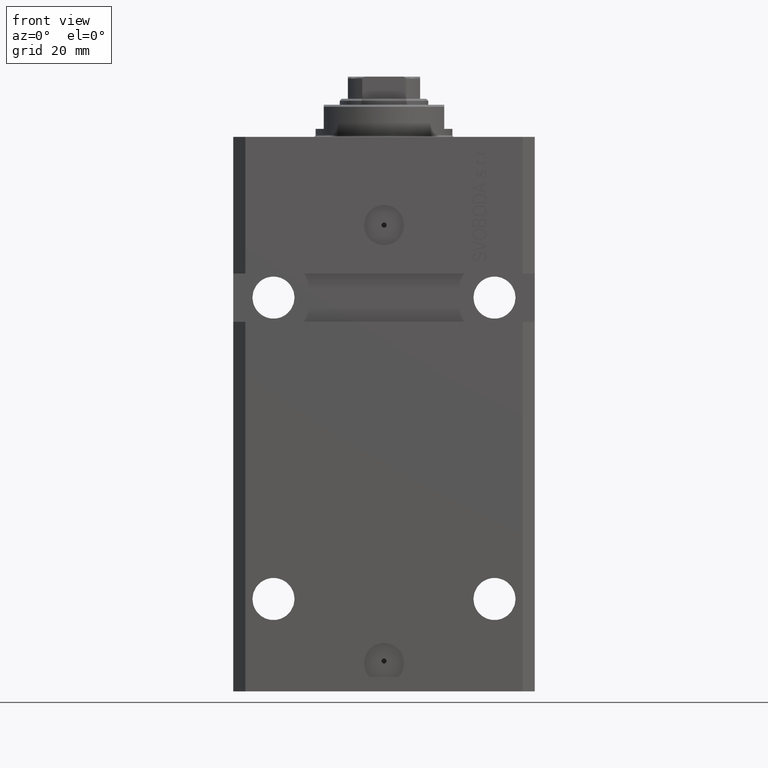
[diagram: clean part render]
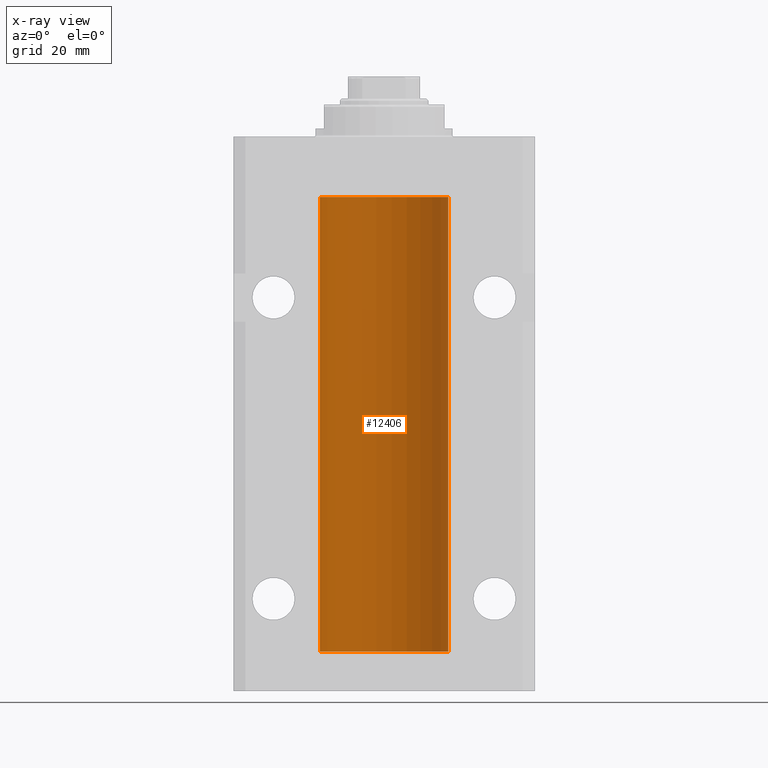
[diagram: x-ray — body ghosted, one internal face saturated and labeled with its STEP entity id]
A machine part, front view, then the same camera in x-ray: the body is ghosted and one INTERNAL B-rep face — a face not visible from any outside direction — is saturated and labeled: STEP entity #12406.
In plain terms, the highlighted cylindrical surface (partial cylindrical patch) has radius 16 mm, axis along (0, 0, 1).
Its self-contained STEP definition (entity closure, byte-faithful):
#627 = CARTESIAN_POINT ( 'NONE',  ( -15.98778717651346426, 0.6250289588122056594, -126.0813158568705461 ) ) ;
#890 = CYLINDRICAL_SURFACE ( 'NONE', #15575, 16.00000000000000000 ) ;
#1077 = CARTESIAN_POINT ( 'NONE',  ( -16.00000000000000000, 0.1631714642025800244, -22.62499999999985789 ) ) ;
#1326 = CARTESIAN_POINT ( 'NONE',  ( -15.99228023727724057, 0.5003781296993449201, -126.3834782955424174 ) ) ;
#2049 = LINE ( 'NONE', #9488, #2642 ) ;
#2642 = VECTOR ( 'NONE', #5414, 1000.000000000000000 ) ;
#2920 = VERTEX_POINT ( 'NONE', #22486 ) ;
#3765 = CARTESIAN_POINT ( 'NONE',  ( 16.00000000000000000, 0.000000000000000000, -128.0999999999999943 ) ) ;
#4459 = CARTESIAN_POINT ( 'NONE',  ( -15.99707730059171240, 0.3150375992092407373, -21.45402333202571654 ) ) ;
#5414 = DIRECTION ( 'NONE',  ( -0.000000000000000000, -0.000000000000000000, 1.000000000000000000 ) ) ;
#6822 = CARTESIAN_POINT ( 'NONE',  ( -16.00000000000000000, 1.959434878635765131E-15, -128.0999999999999943 ) ) ;
#8141 = CARTESIAN_POINT ( 'NONE',  ( 16.00000000000000000, 0.000000000000000000, -128.0999999999999943 ) ) ;
#8288 = CARTESIAN_POINT ( 'NONE',  ( -15.99070426498503572, 0.5462220647145579200, -126.3146006461414999 ) ) ;
#9488 = CARTESIAN_POINT ( 'NONE',  ( -16.00000000000000000, 1.959434878635765131E-15, -128.0999999999999943 ) ) ;
#9981 = ORIENTED_EDGE ( 'NONE', *, *, #21139, .F. ) ;
#10487 = CARTESIAN_POINT ( 'NONE',  ( -15.99070653155268040, 0.5573233280232814391, -125.6734814868050734 ) ) ;
#10492 = CIRCLE ( 'NONE', #37296, 16.00000000000000000 ) ;
#10756 = ORIENTED_EDGE ( 'NONE', *, *, #28419, .F. ) ;
#10885 = LINE ( 'NONE', #6822, #21146 ) ;
#11198 = CARTESIAN_POINT ( 'NONE',  ( -16.00000000000000000, 1.643679961284177128E-16, -21.37499999999999645 ) ) ;
#11217 = EDGE_CURVE ( 'NONE', #23439, #36219, #12019, .T. ) ;
#11710 = VECTOR ( 'NONE', #41277, 1000.000000000000000 ) ;
#11885 = CARTESIAN_POINT ( 'NONE',  ( -15.98778717651346071, 0.6250289588122140971, -22.08131585687052478 ) ) ;
#12019 = LINE ( 'NONE', #26636, #11710 ) ;
#12406 = ADVANCED_FACE ( 'NONE', ( #44789 ), #890, .F. ) ;
#14075 = LINE ( 'NONE', #3765, #40284 ) ;
#14081 = CARTESIAN_POINT ( 'NONE',  ( -15.99934216141748244, 0.1636497843296234600, -125.3912652802930410 ) ) ;
#14802 = CARTESIAN_POINT ( 'NONE',  ( -15.98844267028591482, 0.6088369347963316081, -22.16324735024328518 ) ) ;
#15037 = CARTESIAN_POINT ( 'NONE',  ( -15.99934216141748244, 0.1636497843296417787, -21.39126528029306229 ) ) ;
#15472 = EDGE_LOOP ( 'NONE', ( #9981, #10756, #30851, #27731, #34661, #31088, #21954, #38299 ) ) ;
#15575 = AXIS2_PLACEMENT_3D ( 'NONE', #15766, #45025, #30610 ) ;
#15721 = CARTESIAN_POINT ( 'NONE',  ( -15.99228023727724413, 0.5003781296993413674, -22.38347829554236057 ) ) ;
#15746 = DIRECTION ( 'NONE',  ( 0.000000000000000000, 0.000000000000000000, 1.000000000000000000 ) ) ;
#15766 = CARTESIAN_POINT ( 'NONE',  ( 0.000000000000000000, 0.000000000000000000, -128.0999999999999943 ) ) ;
#15913 = CARTESIAN_POINT ( 'NONE',  ( -16.00000000000000000, 1.643679961284177128E-16, -21.37499999999999645 ) ) ;
#17267 = CARTESIAN_POINT ( 'NONE',  ( -16.00000000000000000, -1.292616471832823584E-14, -125.3749999999999858 ) ) ;
#18855 = CARTESIAN_POINT ( 'NONE',  ( -15.99548640841683067, 0.3843705577988847377, -21.50046628527008608 ) ) ;
#18857 = CARTESIAN_POINT ( 'NONE',  ( -15.98844267028591126, 0.6088369347963280553, -126.1632473502432248 ) ) ;
#19082 = CARTESIAN_POINT ( 'NONE',  ( -15.98779057735153941, 0.6249419637998100407, -21.83670145863507273 ) ) ;
#19771 = CARTESIAN_POINT ( 'NONE',  ( -16.00000000000000000, 1.959434878635765131E-15, -128.0999999999999943 ) ) ;
#21139 = EDGE_CURVE ( 'NONE', #39667, #47026, #10885, .T. ) ;
#21146 = VECTOR ( 'NONE', #32218, 1000.000000000000000 ) ;
#21353 = CARTESIAN_POINT ( 'NONE',  ( -16.00000000000000000, 1.959434878635765131E-15, -15.00000000000000000 ) ) ;
#21754 = EDGE_CURVE ( 'NONE', #38838, #2920, #14075, .T. ) ;
#21921 = VERTEX_POINT ( 'NONE', #33481 ) ;
#21954 = ORIENTED_EDGE ( 'NONE', *, *, #43801, .F. ) ;
#22486 = CARTESIAN_POINT ( 'NONE',  ( 16.00000000000000000, 0.000000000000000000, -15.00000000000000000 ) ) ;
#22689 = CARTESIAN_POINT ( 'NONE',  ( -16.00000000000013145, 3.685127464164956467E-13, -126.6250000000034248 ) ) ;
#23139 = CARTESIAN_POINT ( 'NONE',  ( -15.99711699979842017, 0.3253759916140657737, -22.55856151623175521 ) ) ;
#23439 = VERTEX_POINT ( 'NONE', #15913 ) ;
#24104 = EDGE_CURVE ( 'NONE', #2920, #36219, #10492, .T. ) ;
#25114 = CARTESIAN_POINT ( 'NONE',  ( -16.00000000000000711, 0.08259886010188459415, -125.3750000000000142 ) ) ;
#25982 = CIRCLE ( 'NONE', #28265, 16.00000000000000000 ) ;
#26044 = CARTESIAN_POINT ( 'NONE',  ( -15.99711699979841661, 0.3253759916140733233, -126.5585615162317907 ) ) ;
#26636 = CARTESIAN_POINT ( 'NONE',  ( -16.00000000000000000, 1.959434878635765131E-15, -128.0999999999999943 ) ) ;
#27731 = ORIENTED_EDGE ( 'NONE', *, *, #24104, .T. ) ;
#27822 = CARTESIAN_POINT ( 'NONE',  ( -16.00000000000013145, 3.685127464164956467E-13, -126.6250000000034248 ) ) ;
#28265 = AXIS2_PLACEMENT_3D ( 'NONE', #31112, #45520, #34245 ) ;
#28419 = EDGE_CURVE ( 'NONE', #38838, #39667, #25982, .T. ) ;
#28692 = CARTESIAN_POINT ( 'NONE',  ( -15.99707730059170885, 0.3150375992092249722, -125.4540233320256561 ) ) ;
#30363 = DIRECTION ( 'NONE',  ( 1.000000000000000000, 0.000000000000000000, 0.000000000000000000 ) ) ;
#30610 = DIRECTION ( 'NONE',  ( 1.000000000000000000, 0.000000000000000000, 0.000000000000000000 ) ) ;
#30851 = ORIENTED_EDGE ( 'NONE', *, *, #21754, .T. ) ;
#31088 = ORIENTED_EDGE ( 'NONE', *, *, #33418, .T. ) ;
#31112 = CARTESIAN_POINT ( 'NONE',  ( 0.000000000000000000, 0.000000000000000000, -128.0999999999999943 ) ) ;
#32218 = DIRECTION ( 'NONE',  ( -0.000000000000000000, -0.000000000000000000, 1.000000000000000000 ) ) ;
#33418 = EDGE_CURVE ( 'NONE', #23439, #21921, #45462, .T. ) ;
#33481 = CARTESIAN_POINT ( 'NONE',  ( -16.00000000000013145, 3.685127038166941002E-13, -22.62500000000341771 ) ) ;
#33700 = CARTESIAN_POINT ( 'NONE',  ( -16.00000000000013145, 3.685127038166941002E-13, -22.62500000000341771 ) ) ;
#33930 = CARTESIAN_POINT ( 'NONE',  ( -16.00000000000000711, 0.08259886010189904093, -21.37500000000000000 ) ) ;
#34099 = B_SPLINE_CURVE_WITH_KNOTS ( 'NONE', 3,
 ( #40221, #25114, #14081, #28692, #43346, #10487, #40456, #627, #18857, #8288, #1326, #26044, #41374, #22689 ),
 .UNSPECIFIED., .F., .F.,
 ( 4, 2, 2, 2, 2, 2, 4 ),
 ( 2.433761345584583521E-18, 0.0002442776652680811759, 0.0004885553305361598582, 0.0009771106610723171142, 0.001221388326340437430, 0.001465665991608557529, 0.001954221322144798594 ),
 .UNSPECIFIED. ) ;
#34245 = DIRECTION ( 'NONE',  ( 1.000000000000000000, 0.000000000000000000, 0.000000000000000000 ) ) ;
#34661 = ORIENTED_EDGE ( 'NONE', *, *, #11217, .F. ) ;
#35290 = VERTEX_POINT ( 'NONE', #17267 ) ;
#36219 = VERTEX_POINT ( 'NONE', #21353 ) ;
#37296 = AXIS2_PLACEMENT_3D ( 'NONE', #38755, #15746, #30363 ) ;
#38299 = ORIENTED_EDGE ( 'NONE', *, *, #40519, .T. ) ;
#38755 = CARTESIAN_POINT ( 'NONE',  ( 0.000000000000000000, 0.000000000000000000, -15.00000000000000000 ) ) ;
#38838 = VERTEX_POINT ( 'NONE', #8141 ) ;
#39667 = VERTEX_POINT ( 'NONE', #19771 ) ;
#40221 = CARTESIAN_POINT ( 'NONE',  ( -16.00000000000000000, -1.292616471832823584E-14, -125.3749999999999858 ) ) ;
#40284 = VECTOR ( 'NONE', #43581, 1000.000000000000000 ) ;
#40456 = CARTESIAN_POINT ( 'NONE',  ( -15.98779057735154296, 0.6249419637998034904, -125.8367014586350763 ) ) ;
#40519 = EDGE_CURVE ( 'NONE', #35290, #47026, #34099, .T. ) ;
#41145 = CARTESIAN_POINT ( 'NONE',  ( -15.99070426498503217, 0.5462220647145618058, -22.31460064614143590 ) ) ;
#41277 = DIRECTION ( 'NONE',  ( -0.000000000000000000, -0.000000000000000000, 1.000000000000000000 ) ) ;
#41374 = CARTESIAN_POINT ( 'NONE',  ( -15.99999999999999289, 0.1631714642025816342, -126.6249999999999005 ) ) ;
#43346 = CARTESIAN_POINT ( 'NONE',  ( -15.99548640841682712, 0.3843705577988638655, -125.5004662852700363 ) ) ;
#43581 = DIRECTION ( 'NONE',  ( -0.000000000000000000, -0.000000000000000000, 1.000000000000000000 ) ) ;
#43801 = EDGE_CURVE ( 'NONE', #35290, #21921, #2049, .T. ) ;
#44063 = CARTESIAN_POINT ( 'NONE',  ( -15.99070653155267685, 0.5573233280232986475, -21.67348148680506625 ) ) ;
#44789 = FACE_OUTER_BOUND ( 'NONE', #15472, .T. ) ;
#45025 = DIRECTION ( 'NONE',  ( -0.000000000000000000, -0.000000000000000000, 1.000000000000000000 ) ) ;
#45462 = B_SPLINE_CURVE_WITH_KNOTS ( 'NONE', 3,
 ( #11198, #33930, #15037, #4459, #18855, #44063, #19082, #11885, #14802, #41145, #15721, #23139, #1077, #33700 ),
 .UNSPECIFIED., .F., .F.,
 ( 4, 2, 2, 2, 2, 2, 4 ),
 ( 1.597328219370744179E-19, 0.0002442776652680942405, 0.0004885553305361882643, 0.0009771106610723839011, 0.001221388326340481665, 0.001465665991608579430, 0.001954221322144767369 ),
 .UNSPECIFIED. ) ;
#45520 = DIRECTION ( 'NONE',  ( 0.000000000000000000, 0.000000000000000000, 1.000000000000000000 ) ) ;
#47026 = VERTEX_POINT ( 'NONE', #27822 ) ;